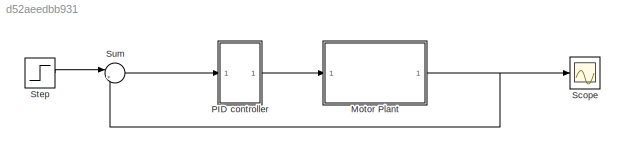
MODEL slx_d52aeedbb931
KIND model
CONFIG AbsTol = auto
CONFIG EnableMultiTasking = off
CONFIG FixedStep = auto
CONFIG MaxStep = auto
CONFIG MinStep = auto
CONFIG RelTol = 1e-3
CONFIG SampleTimeConstraint = Unconstrained
CONFIG Solver = VariableStepAuto
CONFIG SolverName = VariableStepAuto
CONFIG StartTime = 0.0
CONFIG StopTime = 10.0
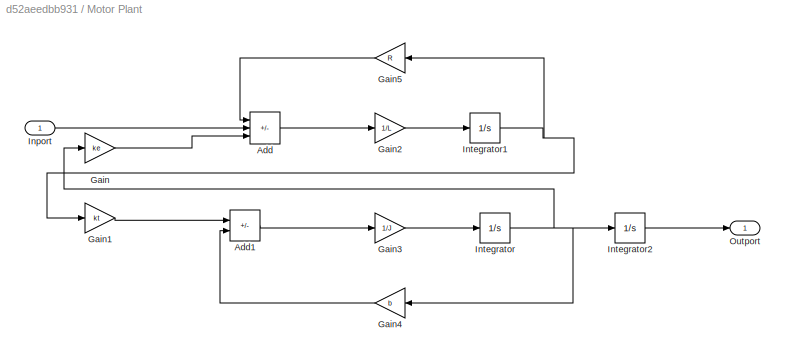
BLOCK [SubSystem] Motor Plant
  Ports = [1, 1]
  RequestExecContextInheritance = off
BLOCK [Sum] Motor Plant/Add
  IconShape = rectangular
  Inputs = -+-
  Ports = [3, 1]
BLOCK [Sum] Motor Plant/Add1
  IconShape = rectangular
  Inputs = +-
  Ports = [2, 1]
BLOCK [Gain] Motor Plant/Gain
  Gain = ke
BLOCK [Gain] Motor Plant/Gain1
  Gain = kt
BLOCK [Gain] Motor Plant/Gain2
  Gain = 1/L
BLOCK [Gain] Motor Plant/Gain3
  Gain = 1/J
BLOCK [Gain] Motor Plant/Gain4
  Gain = b
  NameLocation = top
BLOCK [Gain] Motor Plant/Gain5
  Gain = R
  NameLocation = top
BLOCK [Inport] Motor Plant/Inport
BLOCK [Integrator] Motor Plant/Integrator
  Ports = [1, 1]
BLOCK [Integrator] Motor Plant/Integrator1
  Ports = [1, 1]
BLOCK [Integrator] Motor Plant/Integrator2
  Ports = [1, 1]
BLOCK [Outport] Motor Plant/Outport
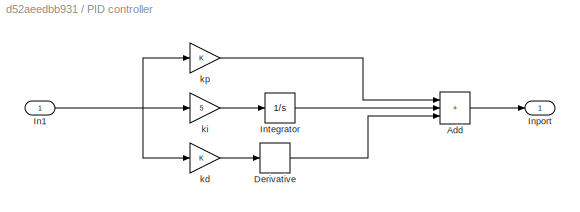
BLOCK [SubSystem] PID controller
  Ports = [1, 1]
  RequestExecContextInheritance = off
BLOCK [Sum] PID controller/Add
  IconShape = rectangular
  Inputs = +++
  Ports = [3, 1]
BLOCK [Derivative] PID controller/Derivative
BLOCK [Inport] PID controller/In1
BLOCK [Outport] PID controller/Inport
BLOCK [Integrator] PID controller/Integrator
  Ports = [1, 1]
BLOCK [Gain] PID controller/kd
BLOCK [Gain] PID controller/ki
  Gain = 5
BLOCK [Gain] PID controller/kp
BLOCK [Scope] Scope
  Floating = off
  NumInputPorts = 1
  Ports = [1]
  ScopeSpecificationString = Simulink.scopes.TimeScopeBlockCfg('CurrentConfiguration', extmgr.ConfigurationSet(extmgr.Configuration('Core','General UI',true),extmgr.Configuration('Core','Source UI',true),extmgr.Configuration('Sources','WiredSimulink',true),extmgr.Configuration('Visuals','Time Domain',true,'SerializedDisplays',{struct('MinYLimReal','-0.00002','MaxYLimReal','0.00022','YLabelReal','','MinYLimMag','0.00000','MaxY...<+1358ch>
BLOCK [Step] Step
  SampleTime = 0
  Time = 0
BLOCK [Sum] Sum
  Inputs = |++
  Ports = [2, 1]
LINE Motor Plant/Add1:1 -> Motor Plant/Gain3:1
LINE Motor Plant/Add:1 -> Motor Plant/Gain2:1
LINE Motor Plant/Gain1:1 -> Motor Plant/Add1:1
LINE Motor Plant/Gain2:1 -> Motor Plant/Integrator1:1
LINE Motor Plant/Gain3:1 -> Motor Plant/Integrator:1
LINE Motor Plant/Gain4:1 -> Motor Plant/Add1:2
LINE Motor Plant/Gain5:1 -> Motor Plant/Add:1
LINE Motor Plant/Gain:1 -> Motor Plant/Add:3
LINE Motor Plant/Inport:1 -> Motor Plant/Add:2
NET Motor Plant/Integrator1:1 -> Motor Plant/Gain1:1, Motor Plant/Gain5:1
LINE Motor Plant/Integrator2:1 -> Motor Plant/Outport:1
NET Motor Plant/Integrator:1 -> Motor Plant/Gain4:1, Motor Plant/Gain:1, Motor Plant/Integrator2:1
NET Motor Plant:1 -> Scope:1, Sum:2
LINE PID controller/Add:1 -> PID controller/Inport:1
LINE PID controller/Derivative:1 -> PID controller/Add:3
NET PID controller/In1:1 -> PID controller/kd:1, PID controller/ki:1, PID controller/kp:1
LINE PID controller/Integrator:1 -> PID controller/Add:2
LINE PID controller/kd:1 -> PID controller/Derivative:1
LINE PID controller/ki:1 -> PID controller/Integrator:1
LINE PID controller/kp:1 -> PID controller/Add:1
LINE PID controller:1 -> Motor Plant:1
LINE Step:1 -> Sum:1
LINE Sum:1 -> PID controller:1
note: NET lines group one-source signal fan-out (src -> all destinations, sorted); 1:1 wires keep LINE
